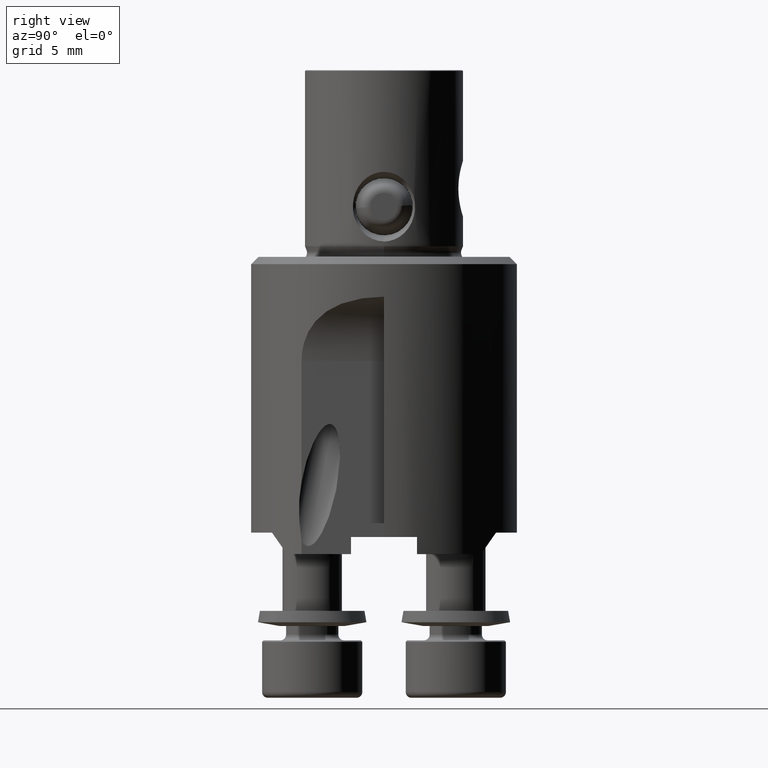
[diagram: clean part render]
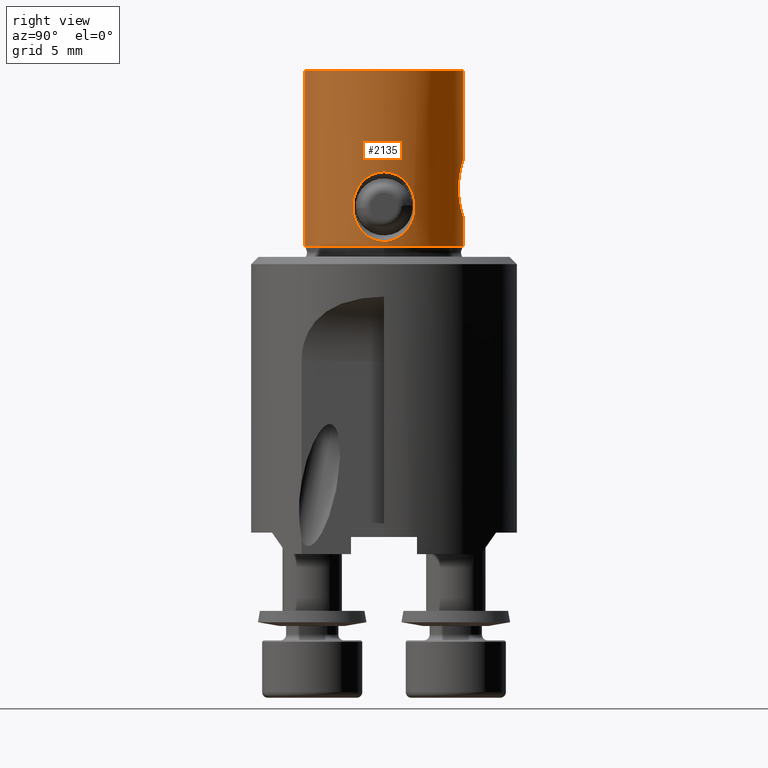
[diagram: same view with one face highlighted and labeled with its STEP entity id]
A machine part, right view. The second image highlights one B-rep face of the part: STEP entity #2135.
In plain terms, the highlighted cylindrical surface (partial cylindrical patch) has radius 5.5 mm, axis along (-0, -0, 1).
Its self-contained STEP definition (entity closure, byte-faithful):
#1227=VERTEX_POINT('NONE',#3390);
#1335=VERTEX_POINT('NONE',#3515);
#1337=EDGE_CURVE('NONE',#2089,#3153,#3517,.T.);
#1415=VERTEX_POINT('NONE',#3602);
#1487=EDGE_CURVE('NONE',#1335,#2717,#3688,.T.);
#1637=EDGE_CURVE('NONE',#3153,#2089,#3856,.T.);
#1689=EDGE_CURVE('NONE',#1415,#2025,#3914,.T.);
#1863=EDGE_CURVE('NONE',#2025,#2913,#4108,.T.);
#1917=VERTEX_POINT('NONE',#4170);
#2025=VERTEX_POINT('NONE',#4287);
#2089=VERTEX_POINT('NONE',#4359);
#2135=ADVANCED_FACE('NONE',(#4412,#4413),#4414,.T.);
#2363=VERTEX_POINT('NONE',#4669);
#2717=VERTEX_POINT('NONE',#5066);
#2733=EDGE_CURVE('NONE',#2363,#1415,#5083,.T.);
#2769=EDGE_CURVE('NONE',#1227,#1335,#5123,.T.);
#2913=VERTEX_POINT('NONE',#5278);
#2935=EDGE_CURVE('NONE',#1917,#2717,#5302,.T.);
#3059=EDGE_CURVE('NONE',#2363,#1227,#5438,.T.);
#3069=EDGE_CURVE('NONE',#2913,#1917,#5448,.T.);
#3153=VERTEX_POINT('NONE',#5540);
#3390=CARTESIAN_POINT('',(1.33927961370171E-014,5.5,2.81233056383974));
#3515=CARTESIAN_POINT('',(1.30969305644875E-014,5.5,6.68766943616027));
#3517=B_SPLINE_CURVE_WITH_KNOTS('',3,(#6010,#6011,#6012,#6013,#6014,#6015,#6016,#6017,#6018,#6019,#6020,#6021,#6022,#6023,#6024,#6025,#6026,#6027,#6028,#6029,#6030,#6031,#6032,#6033,#6034,#6035,#6036,#6037,#6038,#6039),.UNSPECIFIED.,.F.,.F.,(4,2,2,2,2,2,2,2,2,2,2,2,2,2,4),(0.00898832728301011,0.00944021793602721,0.00989210858904431,0.0107958898950785,0.0112477805480956,0.0116996712011127,0.0121515618541298,0.0126034525071469,0.013055343160164,0.0135072338131811,0.0144110151192153,0.0148629057722324,0.0153147964252495,0.0157666870782666,0.0162185777312837),.UNSPECIFIED.);
#3602=CARTESIAN_POINT('',(5.5,-1.30969318506632E-014,0.739031329550571));
#3688=LINE('',#6295,#6296);
#3856=B_SPLINE_CURVE_WITH_KNOTS('',3,(#6558,#6559,#6560,#6561,#6562,#6563,#6564,#6565,#6566,#6567,#6568,#6569,#6570,#6571,#6572,#6573,#6574,#6575,#6576,#6577,#6578,#6579,#6580,#6581,#6582,#6583),.UNSPECIFIED.,.F.,.F.,(4,2,2,2,2,2,2,2,2,2,2,2,4),(0.00174728561067656,0.00265241581971825,0.0031049809242391,0.00355754602875994,0.00401011113328079,0.00446267623780163,0.00491524134232248,0.00536780644684333,0.00627293665588502,0.00717806686492672,0.00808319707396842,0.00853576217848926,0.00898832728301011),.UNSPECIFIED.);
#3914=CIRCLE('',#6659,5.5);
#4108=LINE('',#6984,#6985);
#4170=CARTESIAN_POINT('',(5.5,-1.24233983560609E-014,12.9468172400786));
#4287=CARTESIAN_POINT('',(-6.73533494602307E-016,-5.5,0.739031329550571));
#4359=CARTESIAN_POINT('',(5.50000000000002,-1.62814142982523E-014,1.07512886940353));
#4412=FACE_OUTER_BOUND('',#7444,.T.);
#4413=FACE_BOUND('',#7445,.T.);
#4414=CYLINDRICAL_SURFACE('',#7446,5.5);
#4669=CARTESIAN_POINT('',(0.0,5.5,0.739031329550571));
#5066=CARTESIAN_POINT('',(0.0,5.5,12.9468172400786));
#5083=CIRCLE('',#8515,5.5);
#5123=B_SPLINE_CURVE_WITH_KNOTS('',3,(#8570,#8571,#8572,#8573,#8574,#8575,#8576,#8577,#8578,#8579,#8580,#8581,#8582,#8583,#8584,#8585,#8586,#8587,#8588,#8589,#8590,#8591,#8592,#8593,#8594,#8595,#8596,#8597),.UNSPECIFIED.,.F.,.F.,(4,2,2,2,2,2,2,2,2,2,2,2,2,4),(0.00746215496544504,0.00820777211282217,0.00858058068651074,0.00895338926019931,0.00969900640757645,0.010071814981265,0.0104446235549536,0.0108174321286422,0.0111902407023307,0.0119358578497079,0.0123086664233964,0.012681474997085,0.0130542835707736,0.0134270921444622),.UNSPECIFIED.);
#5278=CARTESIAN_POINT('',(-6.73533494602307E-016,-5.5,12.9468172400786));
#5302=CIRCLE('',#8905,5.5);
#5438=LINE('',#9084,#9085);
#5448=CIRCLE('',#9110,5.5);
#5540=CARTESIAN_POINT('',(5.5,-1.27999805506669E-014,5.92487113059643));
#6010=CARTESIAN_POINT('',(5.50000000000002,-1.62814142982523E-014,1.07512886940353));
#6011=CARTESIAN_POINT('',(5.5,-0.151981108445142,1.07512886940356));
#6012=CARTESIAN_POINT('',(5.49350592173138,-0.305095201418308,1.09345198983005));
#6013=CARTESIAN_POINT('',(5.46930575989562,-0.598652569357927,1.1636115385029));
#6014=CARTESIAN_POINT('',(5.45130914432202,-0.742866290466718,1.21634852557382));
#6015=CARTESIAN_POINT('',(5.38598784987319,-1.1470055496558,1.41689865381055));
#6016=CARTESIAN_POINT('',(5.32668470732835,-1.38441372760661,1.6090365741474));
#6017=CARTESIAN_POINT('',(5.24051352438806,-1.67244157919604,1.95057269389844));
#6018=CARTESIAN_POINT('',(5.21184228564559,-1.75863177363436,2.07516371382046));
#6019=CARTESIAN_POINT('',(5.15986742873457,-1.90574233399059,2.33533446261738));
#6020=CARTESIAN_POINT('',(5.13637548753958,-1.96736837449922,2.47142374997816));
#6021=CARTESIAN_POINT('',(5.09692820174774,-2.0674173202829,2.75574063022768));
#6022=CARTESIAN_POINT('',(5.08111084090035,-2.10548062560002,2.90398611917844));
#6023=CARTESIAN_POINT('',(5.06009248588621,-2.15550459906026,3.20125835338816));
#6024=CARTESIAN_POINT('',(5.05466373232976,-2.16803473535491,3.35170474350019));
#6025=CARTESIAN_POINT('',(5.0548578435231,-2.16758211895379,3.65633217347174));
#6026=CARTESIAN_POINT('',(5.06058683536219,-2.15435127157298,3.80891906310266));
#6027=CARTESIAN_POINT('',(5.0820467285583,-2.10322836808539,4.1058428213023));
#6028=CARTESIAN_POINT('',(5.0977681271102,-2.0653665441175,4.25152615651937));
#6029=CARTESIAN_POINT('',(5.15774265300881,-1.91300969226382,4.68005020309751));
#6030=CARTESIAN_POINT('',(5.21274894965902,-1.76593232244705,4.94014494555969));
#6031=CARTESIAN_POINT('',(5.2998020297008,-1.47391166319013,5.28401880054873));
#6032=CARTESIAN_POINT('',(5.32876153320596,-1.36694444495869,5.38771749251078));
#6033=CARTESIAN_POINT('',(5.38302931362332,-1.1345624716387,5.57159811254649));
#6034=CARTESIAN_POINT('',(5.40864271777052,-1.00762556387726,5.65271988035345));
#6035=CARTESIAN_POINT('',(5.45205937188566,-0.737410286682223,5.78588908548398));
#6036=CARTESIAN_POINT('',(5.46946702931521,-0.59698849798884,5.83685865271669));
#6037=CARTESIAN_POINT('',(5.4934930444868,-0.304957409603714,5.90650801156084));
#6038=CARTESIAN_POINT('',(5.5,-0.15117002941353,5.92487113059643));
#6039=CARTESIAN_POINT('',(5.5,-1.27999805506669E-014,5.92487113059643));
#6295=CARTESIAN_POINT('',(0.0,5.5,14.0011979206049));
#6296=VECTOR('',#9898,1000.0);
#6558=CARTESIAN_POINT('',(5.5,-1.27999805506669E-014,5.92487113059643));
#6559=CARTESIAN_POINT('',(5.5,0.302791304512135,5.92487113059643));
#6560=CARTESIAN_POINT('',(5.47335542310949,0.605850649752211,5.85128810470463));
#6561=CARTESIAN_POINT('',(5.40809700665609,1.01052234808015,5.65100588617957));
#6562=CARTESIAN_POINT('',(5.38220286067699,1.13853502360093,5.56894269665656));
#6563=CARTESIAN_POINT('',(5.32748632879857,1.37195446349722,5.38324599466396));
#6564=CARTESIAN_POINT('',(5.29816669649327,1.47971921266931,5.27791529115318));
#6565=CARTESIAN_POINT('',(5.24045290127812,1.67266036052119,5.04920509529281));
#6566=CARTESIAN_POINT('',(5.21228400904956,1.75732968074957,4.92685495361998));
#6567=CARTESIAN_POINT('',(5.16022854491337,1.90477126240879,4.66666269928998));
#6568=CARTESIAN_POINT('',(5.13628257516523,1.96760488814817,4.52791995749565));
#6569=CARTESIAN_POINT('',(5.09699726107134,2.06724130387377,4.24474373296881));
#6570=CARTESIAN_POINT('',(5.08139373592492,2.1048018058988,4.0992367069206));
#6571=CARTESIAN_POINT('',(5.06013937884091,2.155398433774,3.80017114916847));
#6572=CARTESIAN_POINT('',(5.05466300516512,2.16803643092433,3.64698131830644));
#6573=CARTESIAN_POINT('',(5.05495647933549,2.16735212608017,3.19378602145807));
#6574=CARTESIAN_POINT('',(5.07819810879674,2.11506929708976,2.88848603480457));
#6575=CARTESIAN_POINT('',(5.15715525083215,1.91451400686779,2.32396479423583));
#6576=CARTESIAN_POINT('',(5.21330714506628,1.76391975032798,2.05780399343447));
#6577=CARTESIAN_POINT('',(5.32763404346373,1.3806881520903,1.6058871489687));
#6578=CARTESIAN_POINT('',(5.3869472577328,1.14198525418845,1.41387884493714));
#6579=CARTESIAN_POINT('',(5.45154227563157,0.740958559297643,1.21567049366903));
#6580=CARTESIAN_POINT('',(5.46954082850599,0.596641488987244,1.16292246744413));
#6581=CARTESIAN_POINT('',(5.49369543324968,0.301941099830084,1.09291027991227));
#6582=CARTESIAN_POINT('',(5.5,0.152207941831554,1.07512886940356));
#6583=CARTESIAN_POINT('',(5.50000000000002,-1.62814142982523E-014,1.07512886940353));
#6659=AXIS2_PLACEMENT_3D('',#10190,#10191,#10192);
#6984=CARTESIAN_POINT('',(-6.73533494602307E-016,-5.5,14.0011979206049));
#6985=VECTOR('',#10445,1000.0);
#7444=EDGE_LOOP('',(#10834,#10835,#10836,#10837,#10838,#10839,#10840,#10841));
#7445=EDGE_LOOP('',(#10842,#10843));
#7446=AXIS2_PLACEMENT_3D('',#10844,#10845,#10846);
#8515=AXIS2_PLACEMENT_3D('',#11683,#11684,#11685);
#8570=CARTESIAN_POINT('',(1.33927961370171E-014,5.5,2.81233056383974));
#8571=CARTESIAN_POINT('',(0.25067158226962,5.5,2.81233056383973));
#8572=CARTESIAN_POINT('',(0.500091696198851,5.48200213618693,2.86650915546045));
#8573=CARTESIAN_POINT('',(0.840570918267671,5.43659363138397,3.01856005118377));
#8574=CARTESIAN_POINT('',(0.947376026430731,5.41875948106442,3.08014110875018));
#8575=CARTESIAN_POINT('',(1.14832787311002,5.37976010105654,3.22443106351657));
#8576=CARTESIAN_POINT('',(1.24182896267319,5.35866589822519,3.30703873498554));
#8577=CARTESIAN_POINT('',(1.49295726921066,5.29630400540354,3.57643144816342));
#8578=CARTESIAN_POINT('',(1.62638343020643,5.25487531461004,3.7907390508414));
#8579=CARTESIAN_POINT('',(1.76035991004744,5.21088691065492,4.13622094064376));
#8580=CARTESIAN_POINT('',(1.7948776642669,5.19894178475027,4.25764883325122));
#8581=CARTESIAN_POINT('',(1.84039689985176,5.18300306404718,4.50283335177882));
#8582=CARTESIAN_POINT('',(1.85171052725702,5.1789157290526,4.62646066589283));
#8583=CARTESIAN_POINT('',(1.85157235684717,5.17896512951596,4.87578819842208));
#8584=CARTESIAN_POINT('',(1.83974148792601,5.18323677697605,5.00225589070163));
#8585=CARTESIAN_POINT('',(1.79380200928861,5.1993140489939,5.24652588105965));
#8586=CARTESIAN_POINT('',(1.75983823380606,5.21106832894084,5.36562968148475));
#8587=CARTESIAN_POINT('',(1.62421539398634,5.25556650668235,5.71382263460309));
#8588=CARTESIAN_POINT('',(1.49308078410853,5.29634413763217,5.9240258717876));
#8589=CARTESIAN_POINT('',(1.2385995166499,5.35943178894749,6.19612513212592));
#8590=CARTESIAN_POINT('',(1.14631270749823,5.38017721381744,6.27715232787446));
#8591=CARTESIAN_POINT('',(0.946659500418888,5.41887215808963,6.42023506300062));
#8592=CARTESIAN_POINT('',(0.837852404687398,5.43700774644351,6.482854399751));
#8593=CARTESIAN_POINT('',(0.611371727714103,5.4671084219612,6.5835906779499));
#8594=CARTESIAN_POINT('',(0.494023641088534,5.47912410975111,6.62198471264373));
#8595=CARTESIAN_POINT('',(0.250776933112355,5.49563201987079,6.67421642396619));
#8596=CARTESIAN_POINT('',(0.12433145472576,5.5,6.68766943616027));
#8597=CARTESIAN_POINT('',(1.30969305644875E-014,5.5,6.68766943616027));
#8905=AXIS2_PLACEMENT_3D('',#11922,#11923,#11924);
#9084=CARTESIAN_POINT('',(0.0,5.5,14.0011979206049));
#9085=VECTOR('',#12084,1000.0);
#9110=AXIS2_PLACEMENT_3D('',#12089,#12090,#12091);
#9898=DIRECTION('',(0.0,0.0,1.0));
#10190=CARTESIAN_POINT('',(0.0,0.0,0.739031329550571));
#10191=DIRECTION('',(0.0,0.0,-1.0));
#10192=DIRECTION('',(-8.88178419700125E-016,1.0,0.0));
#10445=DIRECTION('',(0.0,0.0,1.0));
#10834=ORIENTED_EDGE('',*,*,#1863,.F.);
#10835=ORIENTED_EDGE('',*,*,#1689,.F.);
#10836=ORIENTED_EDGE('',*,*,#2733,.F.);
#10837=ORIENTED_EDGE('',*,*,#3059,.T.);
#10838=ORIENTED_EDGE('',*,*,#2769,.T.);
#10839=ORIENTED_EDGE('',*,*,#1487,.T.);
#10840=ORIENTED_EDGE('',*,*,#2935,.F.);
#10841=ORIENTED_EDGE('',*,*,#3069,.F.);
#10842=ORIENTED_EDGE('',*,*,#1337,.T.);
#10843=ORIENTED_EDGE('',*,*,#1637,.T.);
#10844=CARTESIAN_POINT('',(0.0,0.0,14.0011979206049));
#10845=DIRECTION('',(-0.0,-0.0,1.0));
#10846=DIRECTION('',(0.0,1.0,0.0));
#11683=CARTESIAN_POINT('',(0.0,0.0,0.739031329550571));
#11684=DIRECTION('',(0.0,0.0,-1.0));
#11685=DIRECTION('',(0.0,1.0,0.0));
#11922=CARTESIAN_POINT('',(0.0,0.0,12.9468172400786));
#11923=DIRECTION('',(0.0,0.0,1.0));
#11924=DIRECTION('',(0.0,-1.0,0.0));
#12084=DIRECTION('',(0.0,0.0,1.0));
#12089=CARTESIAN_POINT('',(0.0,0.0,12.9468172400786));
#12090=DIRECTION('',(0.0,0.0,1.0));
#12091=DIRECTION('',(0.0,-1.0,0.0));